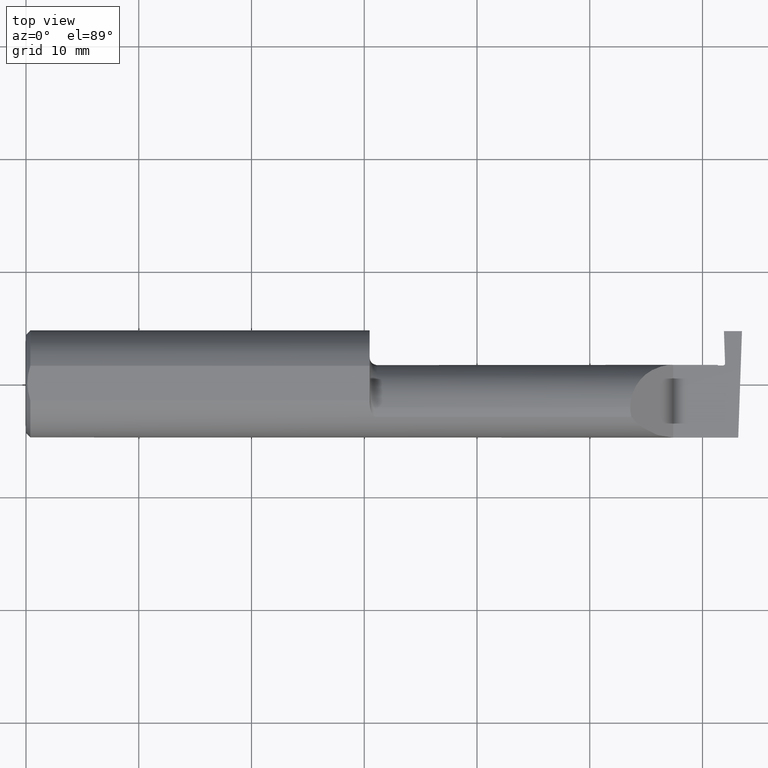
[diagram: clean part render]
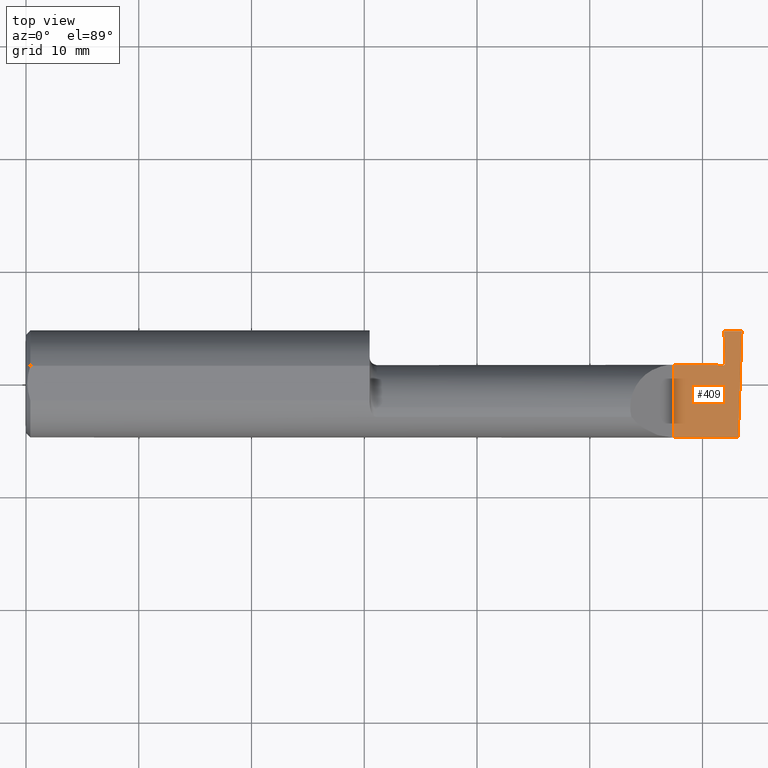
[diagram: same view with one face highlighted and labeled with its STEP entity id]
A machine part, top view. The second image highlights one B-rep face of the part: STEP entity #409.
In plain terms, the highlighted planar face has unit normal (-0, 0, -1).
Its self-contained STEP definition (entity closure, byte-faithful):
#1 = DIRECTION ( 'NONE',  ( 1.000000000000000000, 0.000000000000000000, 0.000000000000000000 ) ) ;
#26 = CARTESIAN_POINT ( 'NONE',  ( 2.441084614202324587, 0.06768195317418557178, -3.501193367289579745E-11 ) ) ;
#64 = CARTESIAN_POINT ( 'NONE',  ( 2.487009473749072441, -0.1873499999999999055, 0.000000000000000000 ) ) ;
#81 = LINE ( 'NONE', #392, #120 ) ;
#88 = VECTOR ( 'NONE', #206, 39.37007874015748143 ) ;
#115 = ORIENTED_EDGE ( 'NONE', *, *, #546, .T. ) ;
#120 = VECTOR ( 'NONE', #1, 39.37007874015748143 ) ;
#121 = VERTEX_POINT ( 'NONE', #755 ) ;
#132 = CARTESIAN_POINT ( 'NONE',  ( 2.260000000000000231, -0.2000000000000000111, 2.939152317953647352E-17 ) ) ;
#158 = CARTESIAN_POINT ( 'NONE',  ( 2.417000000002136328, 0.06465000000018855664, -3.058084418178978237E-11 ) ) ;
#162 = ORIENTED_EDGE ( 'NONE', *, *, #367, .T. ) ;
#166 = VERTEX_POINT ( 'NONE', #64 ) ;
#180 = CARTESIAN_POINT ( 'NONE',  ( 2.260000000000000231, -0.1873499999999999888, 2.939152317953647352E-17 ) ) ;
#190 = VERTEX_POINT ( 'NONE', #370 ) ;
#206 = DIRECTION ( 'NONE',  ( -0.000000000000000000, 1.000000000000000000, -0.000000000000000000 ) ) ;
#207 = EDGE_CURVE ( 'NONE', #190, #255, #374, .T. ) ;
#243 = CARTESIAN_POINT ( 'NONE',  ( 2.500000000000000000, 0.1846500000000000363, 0.000000000000000000 ) ) ;
#255 = VERTEX_POINT ( 'NONE', #731 ) ;
#292 = ORIENTED_EDGE ( 'NONE', *, *, #207, .T. ) ;
#301 = VECTOR ( 'NONE', #960, 39.37007874015748854 ) ;
#302 = CARTESIAN_POINT ( 'NONE',  ( 2.399999999999999911, 0.1846500000000000363, -3.367778697655196529E-19 ) ) ;
#320 = LINE ( 'NONE', #243, #301 ) ;
#344 = CARTESIAN_POINT ( 'NONE',  ( 2.438156691056187597, 0.06464999999995540980, -3.439383347451721799E-11 ) ) ;
#348 = EDGE_CURVE ( 'NONE', #351, #998, #81, .T. ) ;
#349 = PLANE ( 'NONE',  #838 ) ;
#351 = VERTEX_POINT ( 'NONE', #398 ) ;
#364 = LINE ( 'NONE', #132, #88 ) ;
#367 = EDGE_CURVE ( 'NONE', #121, #712, #506, .T. ) ;
#370 = CARTESIAN_POINT ( 'NONE',  ( 2.436999999986549703, 0.1846500000000000363, -3.367778697655196529E-19 ) ) ;
#374 = B_SPLINE_CURVE_WITH_KNOTS ( 'NONE', 1,
 ( #709, #951 ),
 .UNSPECIFIED., .F., .F.,
 ( 2, 2 ),
 ( 6.214901063768138358E-15, 0.002865740601254453644 ),
 .UNSPECIFIED. ) ;
#380 = CARTESIAN_POINT ( 'NONE',  ( 2.433941780145768341, 0.06464999999996004498, -4.714302858705779169E-11 ) ) ;
#392 = CARTESIAN_POINT ( 'NONE',  ( 1.199999999999999956, 0.06665000000000001479, 1.592040838891560081E-16 ) ) ;
#394 = CARTESIAN_POINT ( 'NONE',  ( 2.415000000000238956, 0.06664999999976041478, 1.402892712935740666E-17 ) ) ;
#398 = CARTESIAN_POINT ( 'NONE',  ( 2.260000000000000231, 0.06664999999999998703, 2.939152317953647352E-17 ) ) ;
#409 = ADVANCED_FACE ( 'NONE', ( #589 ), #349, .F. ) ;
#426 = B_SPLINE_CURVE_WITH_KNOTS ( 'NONE', 1,
 ( #158, #878 ),
 .UNSPECIFIED., .F., .F.,
 ( 2, 2 ),
 ( 0.000000000000000000, 7.184204899493574754E-05 ),
 .UNSPECIFIED. ) ;
#435 = EDGE_LOOP ( 'NONE', ( #827, #471, #564, #292, #115, #162, #837, #864, #775 ) ) ;
#453 = CARTESIAN_POINT ( 'NONE',  ( 2.500000000000000000, 0.1846500000000000363, 0.000000000000000000 ) ) ;
#459 = EDGE_CURVE ( 'NONE', #166, #549, #995, .T. ) ;
#471 = ORIENTED_EDGE ( 'NONE', *, *, #729, .F. ) ;
#480 = DIRECTION ( 'NONE',  ( 1.000000000000000000, -0.000000000000000000, -0.000000000000000000 ) ) ;
#485 = CARTESIAN_POINT ( 'NONE',  ( 2.433941780145768341, 0.06464999999996004498, -4.714302858705779169E-11 ) ) ;
#506 = B_SPLINE_CURVE_WITH_KNOTS ( 'NONE', 1,
 ( #485, #818 ),
 .UNSPECIFIED., .F., .F.,
 ( 2, 2 ),
 ( 0.000000000000000000, 0.0004303212156482535966 ),
 .UNSPECIFIED. ) ;
#538 =( BOUNDED_CURVE ( )  B_SPLINE_CURVE ( 3, ( #835, #26, #344, #380 ),
 .UNSPECIFIED., .F., .F. ) 
 B_SPLINE_CURVE_WITH_KNOTS ( ( 4, 4 ),
 ( 2.168404344971008868E-19, 0.0002839584297220573705 ),
 .UNSPECIFIED. ) 
 CURVE ( )  GEOMETRIC_REPRESENTATION_ITEM ( )  RATIONAL_B_SPLINE_CURVE ( ( 1.000000000000000000, 0.7964389136393332791, 0.7964389136393332791, 1.000000000000000000 ) ) 
 REPRESENTATION_ITEM ( '' )  );
#542 = VECTOR ( 'NONE', #480, 39.37007874015748143 ) ;
#546 = EDGE_CURVE ( 'NONE', #255, #121, #538, .T. ) ;
#549 = VERTEX_POINT ( 'NONE', #180 ) ;
#556 = LINE ( 'NONE', #302, #542 ) ;
#564 = ORIENTED_EDGE ( 'NONE', *, *, #653, .F. ) ;
#589 = FACE_OUTER_BOUND ( 'NONE', #435, .T. ) ;
#598 = VERTEX_POINT ( 'NONE', #453 ) ;
#603 = EDGE_CURVE ( 'NONE', #549, #351, #364, .T. ) ;
#634 = CARTESIAN_POINT ( 'NONE',  ( 2.417000000002136328, 0.06465000000018855664, -3.058084418178978237E-11 ) ) ;
#653 = EDGE_CURVE ( 'NONE', #190, #598, #556, .T. ) ;
#669 = CARTESIAN_POINT ( 'NONE',  ( 2.500000000000000000, -0.2000000000000000111, 0.000000000000000000 ) ) ;
#691 = DIRECTION ( 'NONE',  ( -1.000000000000000000, 0.000000000000000000, 1.224646799147353700E-16 ) ) ;
#701 = EDGE_CURVE ( 'NONE', #712, #998, #426, .T. ) ;
#709 = CARTESIAN_POINT ( 'NONE',  ( 2.436999999986549703, 0.1846500000000000363, -3.367778697655196529E-19 ) ) ;
#712 = VERTEX_POINT ( 'NONE', #634 ) ;
#729 = EDGE_CURVE ( 'NONE', #598, #166, #320, .T. ) ;
#731 = CARTESIAN_POINT ( 'NONE',  ( 2.440937515934102908, 0.07189429647678911850, -3.571177306337667974E-11 ) ) ;
#755 = CARTESIAN_POINT ( 'NONE',  ( 2.433941780145768341, 0.06464999999996004498, -4.714302858705779169E-11 ) ) ;
#771 = DIRECTION ( 'NONE',  ( -1.224646799147353700E-16, 0.000000000000000000, -1.000000000000000000 ) ) ;
#775 = ORIENTED_EDGE ( 'NONE', *, *, #603, .F. ) ;
#818 = CARTESIAN_POINT ( 'NONE',  ( 2.417000000002136328, 0.06465000000018855664, -3.058084418178978237E-11 ) ) ;
#827 = ORIENTED_EDGE ( 'NONE', *, *, #459, .F. ) ;
#835 = CARTESIAN_POINT ( 'NONE',  ( 2.440937515934102908, 0.07189429647678911850, -3.571177306337667974E-11 ) ) ;
#837 = ORIENTED_EDGE ( 'NONE', *, *, #701, .T. ) ;
#838 = AXIS2_PLACEMENT_3D ( 'NONE', #669, #771, #691 ) ;
#864 = ORIENTED_EDGE ( 'NONE', *, *, #348, .F. ) ;
#878 = CARTESIAN_POINT ( 'NONE',  ( 2.415000000000238956, 0.06664999999976041478, 1.402892712935740666E-17 ) ) ;
#921 = DIRECTION ( 'NONE',  ( -1.000000000000000000, -0.000000000000000000, -0.000000000000000000 ) ) ;
#926 = CARTESIAN_POINT ( 'NONE',  ( 3.749399456654646757E-32, -0.1873499999999999888, 3.061616997868384127E-16 ) ) ;
#951 = CARTESIAN_POINT ( 'NONE',  ( 2.440937515934102908, 0.07189429647678911850, -3.571177306337667974E-11 ) ) ;
#960 = DIRECTION ( 'NONE',  ( -0.03489949670249478664, -0.9993908270190959842, 0.000000000000000000 ) ) ;
#984 = VECTOR ( 'NONE', #921, 39.37007874015748143 ) ;
#995 = LINE ( 'NONE', #926, #984 ) ;
#998 = VERTEX_POINT ( 'NONE', #394 ) ;